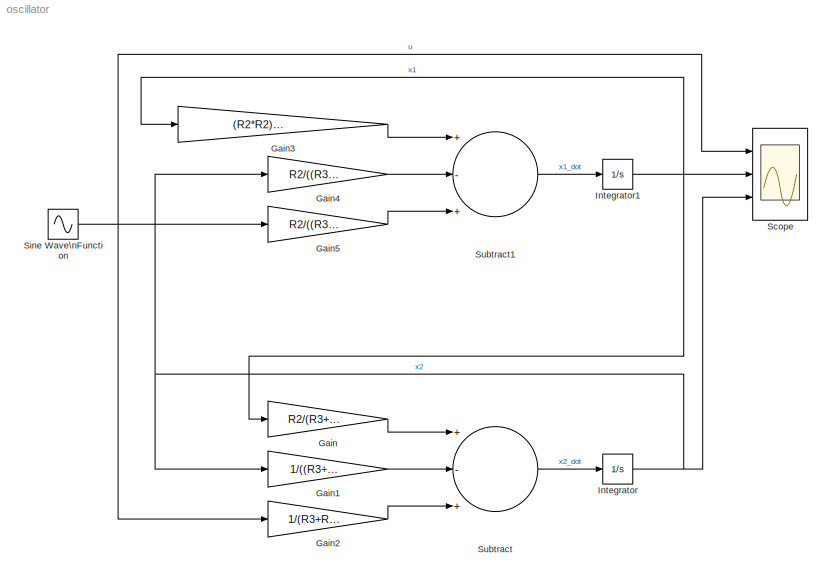
MODEL oscillator
KIND model
BLOCK [Gain] Gain
  Gain = R2/(R3+R2)
  OutDataTypeStr = Inherit: Inherit via internal rule
  ParamDataTypeStr = Inherit: Inherit via internal rule
  SID = 2
  SaturateOnIntegerOverflow = off
BLOCK [Gain] Gain1
  Gain = 1/((R3+R2)*C)
  OutDataTypeStr = Inherit: Inherit via internal rule
  ParamDataTypeStr = Inherit: Inherit via internal rule
  SID = 3
  SaturateOnIntegerOverflow = off
BLOCK [Gain] Gain2
  Gain = 1/(R3+R2)
  OutDataTypeStr = Inherit: Inherit via internal rule
  ParamDataTypeStr = Inherit: Inherit via internal rule
  SID = 4
  SaturateOnIntegerOverflow = off
BLOCK [Gain] Gain3
  Gain = (R2*R2)/((R3+R2)*L)-(R1+R2)/L
  OutDataTypeStr = Inherit: Inherit via internal rule
  ParamDataTypeStr = Inherit: Inherit via internal rule
  SID = 8
  SaturateOnIntegerOverflow = off
BLOCK [Gain] Gain4
  Gain = R2/((R3+R2)*L*C)
  OutDataTypeStr = Inherit: Inherit via internal rule
  ParamDataTypeStr = Inherit: Inherit via internal rule
  SID = 9
  SaturateOnIntegerOverflow = off
BLOCK [Gain] Gain5
  Gain = R2/((R3+R2)*L)
  OutDataTypeStr = Inherit: Inherit via internal rule
  ParamDataTypeStr = Inherit: Inherit via internal rule
  SID = 10
  SaturateOnIntegerOverflow = off
BLOCK [Integrator] Integrator
  ContinuousStateAttributes = 'q'
  InitialCondition = 2
  Ports = [1, 1]
  SID = 6
BLOCK [Integrator] Integrator1
  ContinuousStateAttributes = 'I_1'
  InitialCondition = 15
  Ports = [1, 1]
  SID = 12
BLOCK [Scope] Scope
  Floating = off
  NumInputPorts = 3
  Ports = [3]
  SID = 7
  ScopeSpecificationString = Simulink.scopes.TimeScopeBlockCfg('CurrentConfiguration', extmgr.ConfigurationSet(extmgr.Configuration('Core','General UI',true),extmgr.Configuration('Core','Source UI',true),extmgr.Configuration('Sources','WiredSimulink',true),extmgr.Configuration('Visuals','Time Domain',true,'SerializedDisplays',{struct('MinYLimReal','-1.24766','MaxYLimReal','1.2486','YLabelReal','','MinYLimMag','0.00000','MaxYL...<+2721ch>
BLOCK [Sin] Sine Wave\nFunction
  Ports = [0, 1]
  SID = 1
  SampleTime = 0
BLOCK [Sum] Subtract
  InputSameDT = off
  Inputs = +-+
  OutDataTypeStr = Inherit: Inherit via internal rule
  Ports = [3, 1]
  SID = 5
  SaturateOnIntegerOverflow = off
BLOCK [Sum] Subtract1
  InputSameDT = off
  Inputs = +-+
  OutDataTypeStr = Inherit: Inherit via internal rule
  Ports = [3, 1]
  SID = 11
  SaturateOnIntegerOverflow = off
LINE Gain1:1 -> Subtract:2
LINE Gain2:1 -> Subtract:3
LINE Gain3:1 -> Subtract1:1
LINE Gain4:1 -> Subtract1:2
LINE Gain5:1 -> Subtract1:3
LINE Gain:1 -> Subtract:1
NET Integrator1:1 -> Gain3:1, Gain:1, Scope:2
NET Integrator:1 -> Gain1:1, Gain4:1, Scope:3
NET Sine Wave\nFunction:1 -> Gain2:1, Gain5:1, Scope:1
LINE Subtract1:1 -> Integrator1:1
LINE Subtract:1 -> Integrator:1
note: NET lines group one-source signal fan-out (src -> all destinations, sorted); 1:1 wires keep LINE
